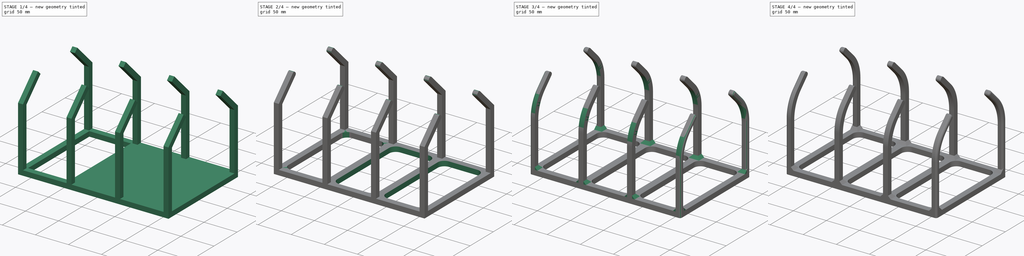
[diagram: build sequence overview — one tinted view per stage of 4, left to right]
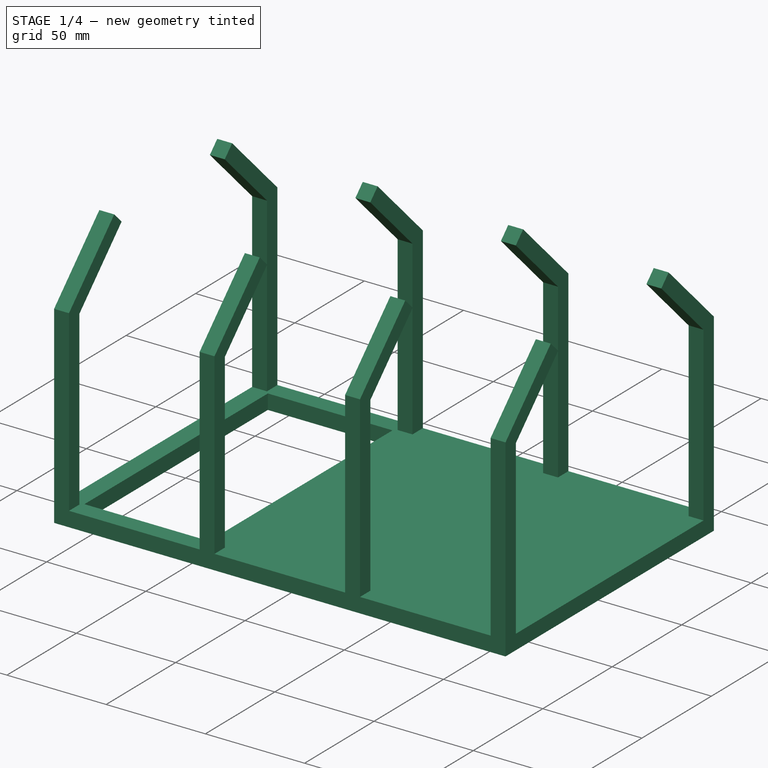
[diagram: stage 1 of 4 — iso view after this stage's code; geometry added in this stage tinted green]
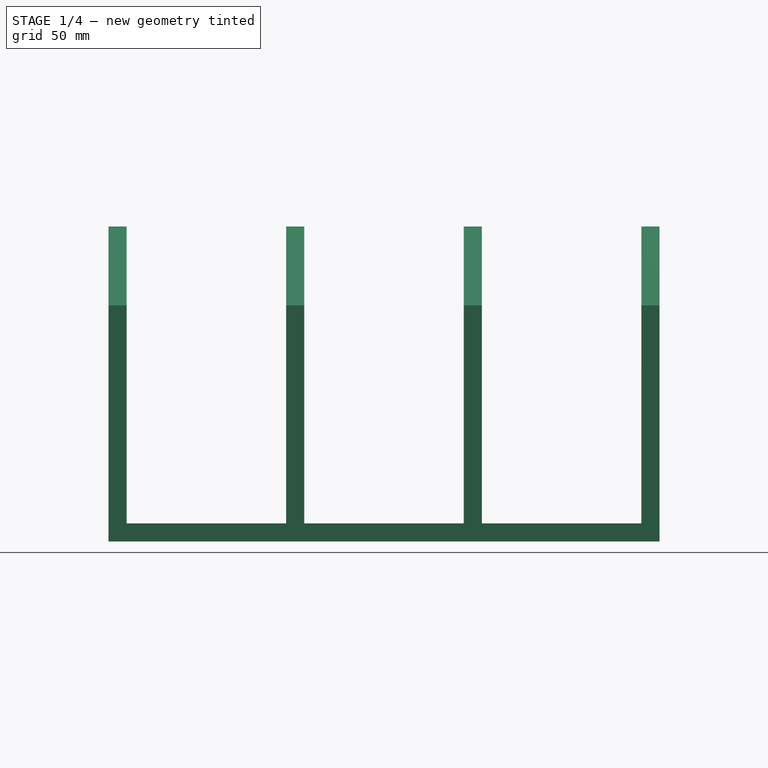
[diagram: stage 1 of 4 — front view after this stage's code; geometry added in this stage tinted green]
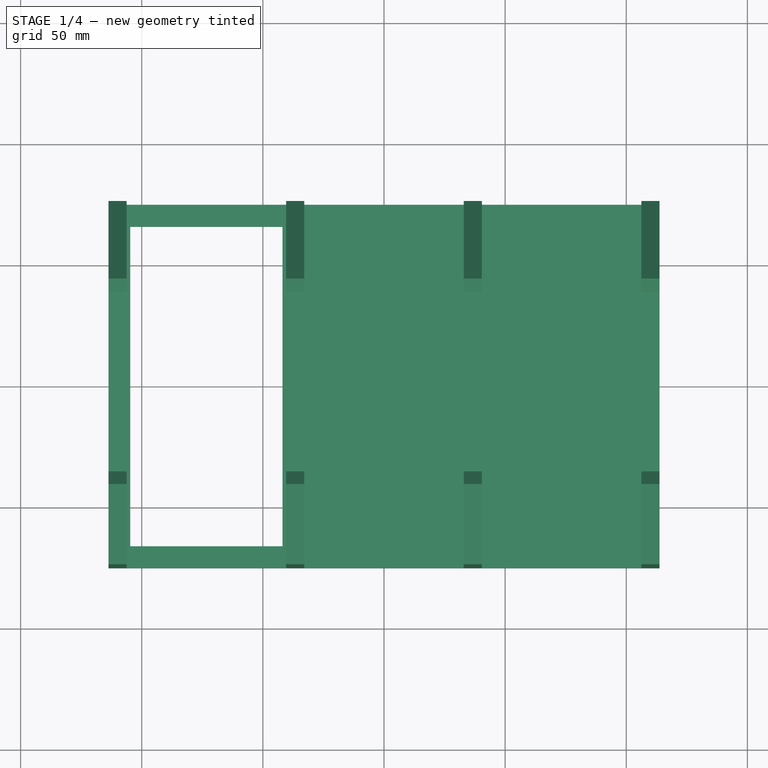
[diagram: stage 1 of 4 — top view after this stage's code; geometry added in this stage tinted green]
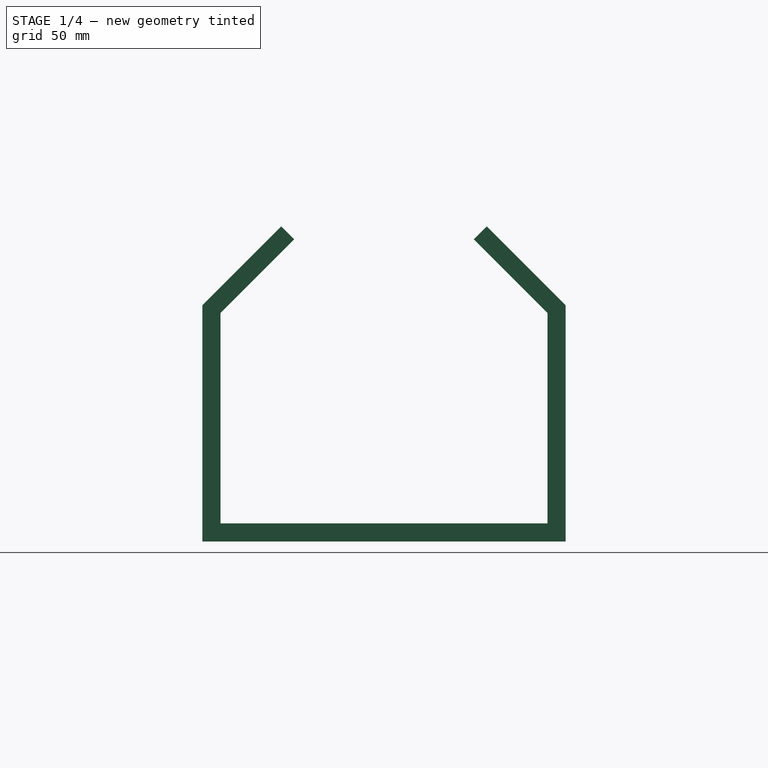
[diagram: stage 1 of 4 — right view after this stage's code; geometry added in this stage tinted green]
FCSTD DOCUMENT  (FreeCAD 0.19R21280 (Git))
Label: drying-rack
License: All rights reserved
LicenseURL: http://en.wikipedia.org/wiki/All_rights_reserved
objects: Sketcher::SketchObject×4, PartDesign::LinearPattern×4, PartDesign::Fillet×4, PartDesign::Pad×2, PartDesign::Pocket×2, PartDesign::Chamfer×1, PartDesign::Draft×1, PartDesign::Body×1
note: 29 computed .brp shape members not serialized (recipe doc carries the construction recipe); baked Part::Feature solids carry a one-line shape summary decoded from their .brp

FEATURE [Sketcher::SketchObject] Sketch
  MapMode = 5
  Support = -> [XY_Plane]
  sketch-geometry (4):
    g0: LineSegment StartX=-113.75 StartY=75 StartZ=0 EndX=113.75 EndY=75 EndZ=0
    g1: LineSegment StartX=113.75 StartY=75 StartZ=0 EndX=113.75 EndY=-75 EndZ=0
    g2: LineSegment StartX=113.75 StartY=-75 StartZ=0 EndX=-113.75 EndY=-75 EndZ=0
    g3: LineSegment StartX=-113.75 StartY=-75 StartZ=0 EndX=-113.75 EndY=75 EndZ=0
  constraints (10):
    c: Coincident(g0,g1)
    c: Coincident(g1,g2)
    c: Coincident(g2,g3)
    c: Coincident(g3,g0)
    c: Horizontal(g2)
    c: Vertical(g3)
    c: Symmetric(g0,g0,g-2)
    c: Symmetric(g0,g1,g-1)
    c: DistanceY(g3,g3) = 150
    c: DistanceX(g0,g0) = 227.5
FEATURE [PartDesign::Pad] Pad
  Length = 7.5
  Length2 = 100
  Profile = -> Sketch
  Type = 0
FEATURE [Sketcher::SketchObject] Sketch001
  ExternalGeometry = -> [Pad]
  MapMode = 5
  Placement = pos=(-113.75,0,0) rot=(0.57735,-0.57735,-0.57735;2.0944rad)
  Support = -> [Pad]
  sketch-geometry (18):
    g0: LineSegment StartX=-75 StartY=7.5 StartZ=0 EndX=-75 EndY=97.5 EndZ=0
    g1: LineSegment [constr] StartX=-75 StartY=97.5 StartZ=0 EndX=0 EndY=172.5 EndZ=0
    g2: LineSegment [constr] StartX=0 StartY=172.5 StartZ=0 EndX=75 EndY=97.5 EndZ=0
    g3: LineSegment StartX=75 StartY=97.5 StartZ=0 EndX=75 EndY=7.5 EndZ=0
    g4: LineSegment [constr] StartX=-67.5 StartY=94.3934 StartZ=0 EndX=0 EndY=161.893 EndZ=0
    g5: LineSegment StartX=-67.5 StartY=7.5 StartZ=0 EndX=-67.5 EndY=94.3934 EndZ=0
    g6: LineSegment [constr] StartX=0 StartY=161.893 StartZ=0 EndX=67.5 EndY=94.3934 EndZ=0
    g7: LineSegment StartX=67.5 StartY=94.3934 StartZ=0 EndX=67.5 EndY=7.5 EndZ=0
    g8: LineSegment StartX=67.5 StartY=7.5 StartZ=0 EndX=75 EndY=7.5 EndZ=0
    g9: LineSegment StartX=-75 StartY=7.5 StartZ=0 EndX=-67.5 EndY=7.5 EndZ=0
    g10: LineSegment [constr] StartX=0 StartY=161.893 StartZ=0 EndX=5.3033 EndY=167.197 EndZ=0
    g11: Circle [constr] CenterX=0 CenterY=172.5 CenterZ=0 NormalX=0 NormalY=0 NormalZ=1 AngleXU=0 Radius=60
    g12: LineSegment StartX=-37.1231 StartY=124.77 StartZ=0 EndX=-42.4264 EndY=130.074 EndZ=0
    g13: LineSegment StartX=-75 StartY=97.5 StartZ=0 EndX=-42.4264 EndY=130.074 EndZ=0
    g14: LineSegment StartX=-37.1231 StartY=124.77 StartZ=0 EndX=-67.5 EndY=94.3934 EndZ=0
    g15: LineSegment StartX=67.5 StartY=94.3934 StartZ=0 EndX=37.1231 EndY=124.77 EndZ=0
    g16: LineSegment StartX=37.1231 StartY=124.77 StartZ=0 EndX=42.4264 EndY=130.074 EndZ=0
    g17: LineSegment StartX=42.4264 StartY=130.074 StartZ=0 EndX=75 EndY=97.5 EndZ=0
  constraints (46):
    c: Coincident(g0,g-3)
    c: Vertical(g0)
    c: Coincident(g0,g1)
    c: PointOnObject(g1,g-2)
    c: Coincident(g1,g2)
    c: Coincident(g2,g3)
    c: Coincident(g3,g-3)
    c: Vertical(g3)
    c: Equal(g3,g0)
    c: DistanceY(g0,g1) = 165
    c: Vertical(g5)
    c: Coincident(g5,g4)
    c: Coincident(g4,g6)
    c: Coincident(g6,g7)
    c: Vertical(g7)
    c: Equal(g7,g5)
    c: Angle(g0,g1) = 2.35619
    c: PointOnObject(g4,g-2)
    c: Symmetric(g6,g4,g-2)
    c: Angle(g5,g4) = 2.35619
    c: PointOnObject(g5,g-3)
    c: Coincident(g8,g7)
    c: Coincident(g8,g3)
    c: Coincident(g9,g0)
    c: Coincident(g9,g5)
    c: Coincident(g10,g4)
    c: PointOnObject(g10,g2)
    c: Perpendicular(g6,g10)
    c: Distance(g10) = 7.5
    c: DistanceX(g8,g8) = 7.5
    c: Coincident(g11,g1)
    c: Diameter(g11) = 120
    c: PointOnObject(g12,g4)
    c: PointOnObject(g12,g1)
    c: Perpendicular(g1,g12)
    c: PointOnObject(g12,g11)
    c: Coincident(g13,g0)
    c: Coincident(g13,g12)
    c: Coincident(g14,g12)
    c: Coincident(g14,g5)
    c: Coincident(g15,g7)
    c: Coincident(g16,g15)
    c: Coincident(g17,g16)
    c: Coincident(g17,g3)
    c: Symmetric(g15,g12,g-2)
    c: Symmetric(g16,g12,g-2)
FEATURE [PartDesign::Pad] Pad001
  BaseFeature = -> Pad
  Length = 7.5
  Length2 = 100
  Profile = -> Sketch001
  Reversed = true
  Type = 0
FEATURE [PartDesign::LinearPattern] LinearPattern
  BaseFeature = -> Pad001
  Direction = -> X_Axis
  Length = 220
  Occurrences = 4
  Originals = -> [Pad001]
FEATURE [Sketcher::SketchObject] Sketch002
  ExternalGeometry = -> [LinearPattern]
  MapMode = 5
  Placement = pos=(0,0,7.5) rot=(0,0,1;0rad)
  Support = -> [LinearPattern]
  sketch-geometry (11):
    g0: LineSegment [constr] StartX=-40.4167 StartY=-67.5 StartZ=0 EndX=-106.25 EndY=-67.5 EndZ=0
    g1: LineSegment [constr] StartX=-106.25 StartY=-67.5 StartZ=0 EndX=-106.25 EndY=67.5 EndZ=0
    g2: LineSegment [constr] StartX=-106.25 StartY=67.5 StartZ=0 EndX=-40.4167 EndY=67.5 EndZ=0
    g3: LineSegment [constr] StartX=-40.4167 StartY=67.5 StartZ=0 EndX=-40.4167 EndY=-67.5 EndZ=0
    g4: LineSegment StartX=-104.75 StartY=66 StartZ=0 EndX=-41.9167 EndY=66 EndZ=0
    g5: LineSegment StartX=-41.9167 StartY=66 StartZ=0 EndX=-41.9167 EndY=-66 EndZ=0
    g6: LineSegment StartX=-41.9167 StartY=-66 StartZ=0 EndX=-104.75 EndY=-66 EndZ=0
    g7: LineSegment StartX=-104.75 StartY=-66 StartZ=0 EndX=-104.75 EndY=66 EndZ=0
    g8: LineSegment [constr] StartX=-104.75 StartY=66 StartZ=0 EndX=-106.25 EndY=66 EndZ=0
    g9: LineSegment [constr] StartX=-41.9167 StartY=66 StartZ=0 EndX=-40.4167 EndY=66 EndZ=0
    g10: LineSegment [constr] StartX=-41.9167 StartY=66 StartZ=0 EndX=-41.9167 EndY=67.5 EndZ=0
  constraints (30):
    c: Coincident(g0,g1)
    c: Coincident(g1,g2)
    c: Coincident(g2,g3)
    c: Coincident(g3,g0)
    c: Horizontal(g0)
    c: Horizontal(g2)
    c: Vertical(g1)
    c: Vertical(g3)
    c: Coincident(g0,g-4)
    c: Coincident(g1,g-3)
    c: Coincident(g4,g5)
    c: Coincident(g5,g6)
    c: Coincident(g6,g7)
    c: Coincident(g7,g4)
    c: Horizontal(g4)
    c: Horizontal(g6)
    c: Vertical(g7)
    c: Symmetric(g5,g4,g-1)
    c: Coincident(g8,g4)
    c: PointOnObject(g8,g1)
    c: Perpendicular(g1,g8)
    c: Coincident(g9,g4)
    c: PointOnObject(g9,g3)
    c: Perpendicular(g3,g9)
    c: Coincident(g10,g4)
    c: PointOnObject(g10,g2)
    c: Vertical(g10)
    c: Equal(g10,g9)
    c: Equal(g9,g8)
    c: DistanceX(g8,g8) = 1.5
FEATURE [PartDesign::Pocket] Pocket
  BaseFeature = -> LinearPattern
  Length = 5
  Length2 = 100
  Profile = -> Sketch002
  Type = 1
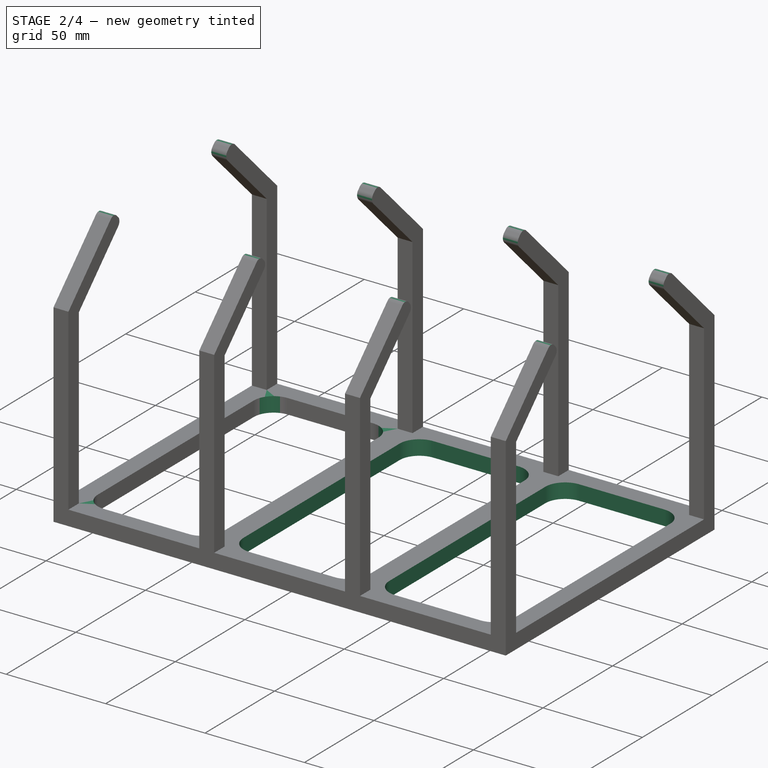
[diagram: stage 2 of 4 — iso view after this stage's code; geometry added in this stage tinted green]
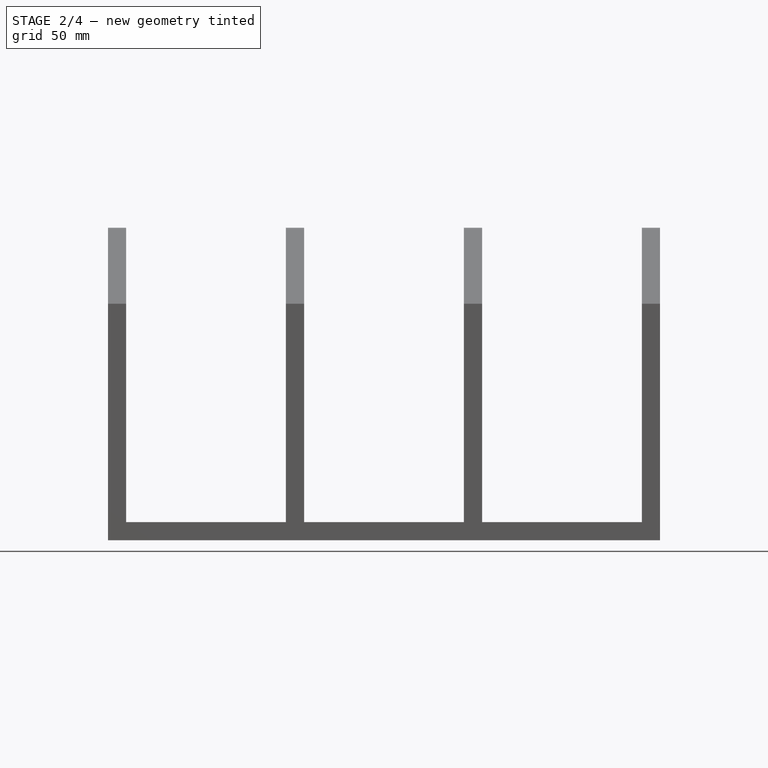
[diagram: stage 2 of 4 — front view after this stage's code; geometry added in this stage tinted green]
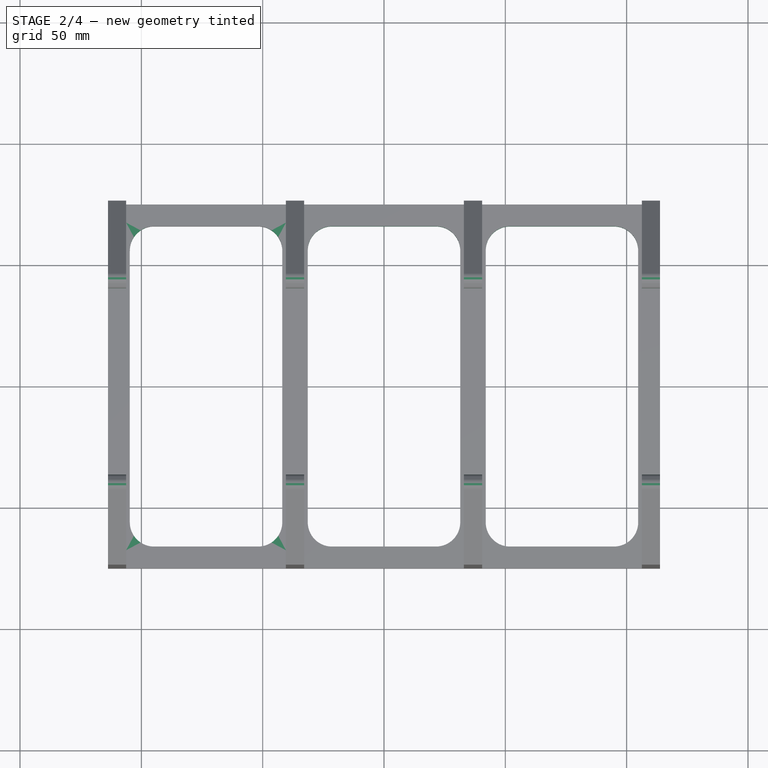
[diagram: stage 2 of 4 — top view after this stage's code; geometry added in this stage tinted green]
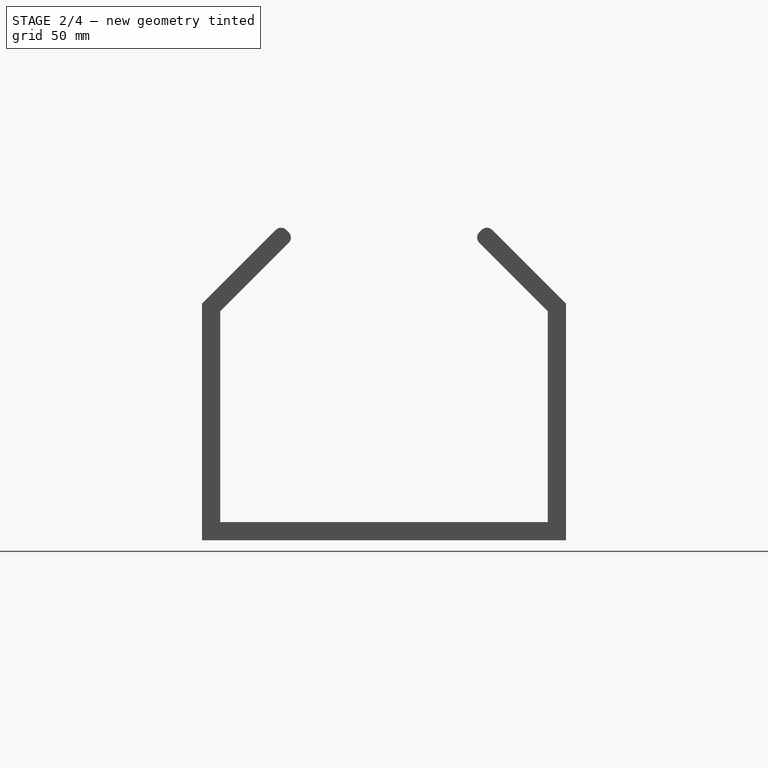
[diagram: stage 2 of 4 — right view after this stage's code; geometry added in this stage tinted green]
FEATURE [PartDesign::LinearPattern] LinearPattern001
  BaseFeature = -> Pocket
  Direction = -> Sketch002 [H_Axis]
  Length = 146.667
  Occurrences = 3
  Originals = -> [Pocket]
FEATURE [PartDesign::Fillet] Fillet002
  Base = -> LinearPattern001 [Edge114,Edge110,Edge106,Edge112,Edge108,Edge104,Edge103,Edge107,Edge111,Edge105,Edge109,Edge113]
  BaseFeature = -> LinearPattern001
  Radius = 10
  SupportTransform = true
FEATURE [PartDesign::Fillet] Fillet
  Base = -> Fillet002 [Edge223,Edge217,Edge218,Edge229,Edge219,Edge230,Edge220,Edge224,Edge221,Edge222,Edge231,Edge228,Edge232,Edge227,Edge225,Edge226]
  BaseFeature = -> Fillet002
  Radius = 3
  SupportTransform = true
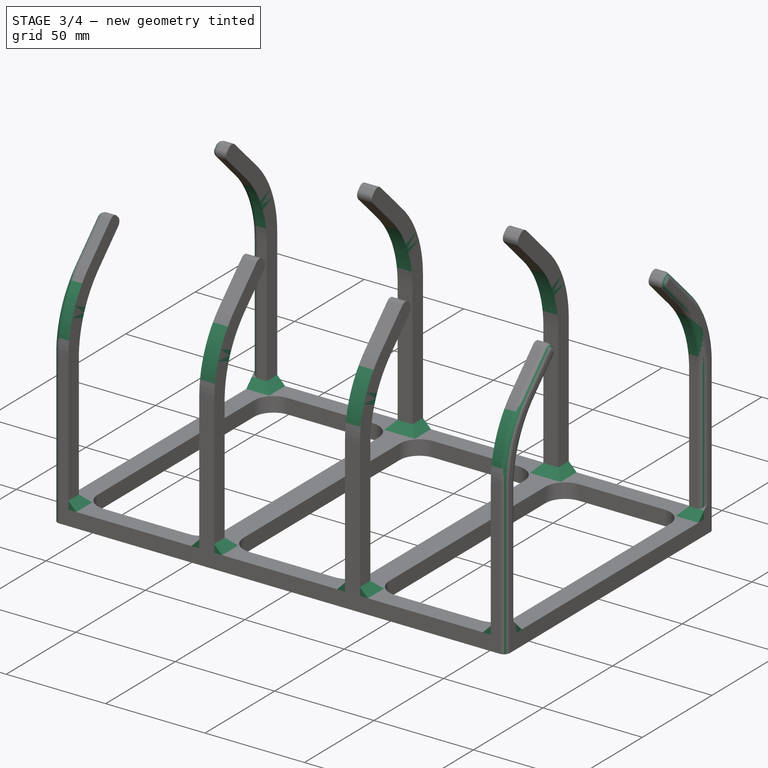
[diagram: stage 3 of 4 — iso view after this stage's code; geometry added in this stage tinted green]
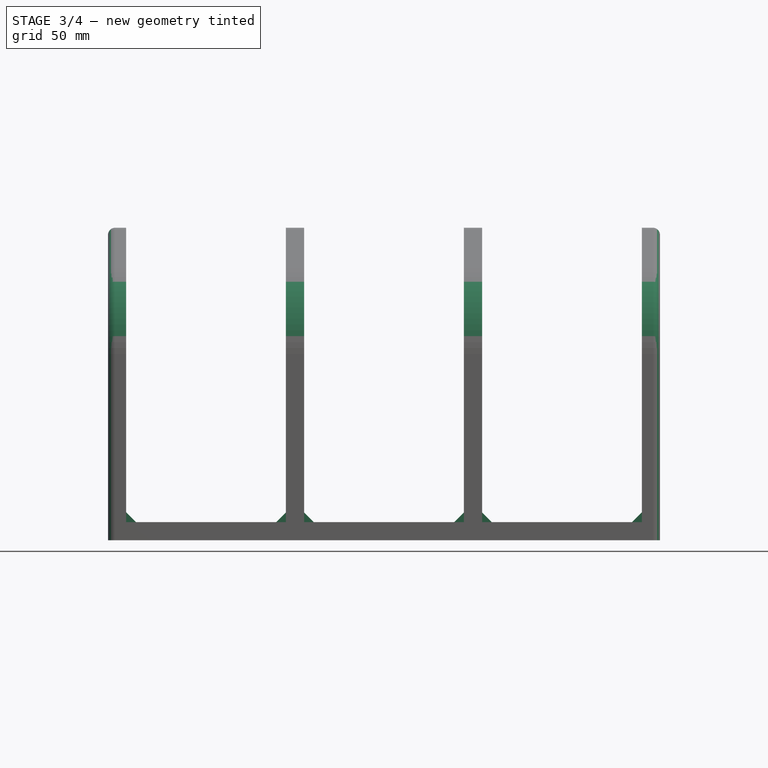
[diagram: stage 3 of 4 — front view after this stage's code; geometry added in this stage tinted green]
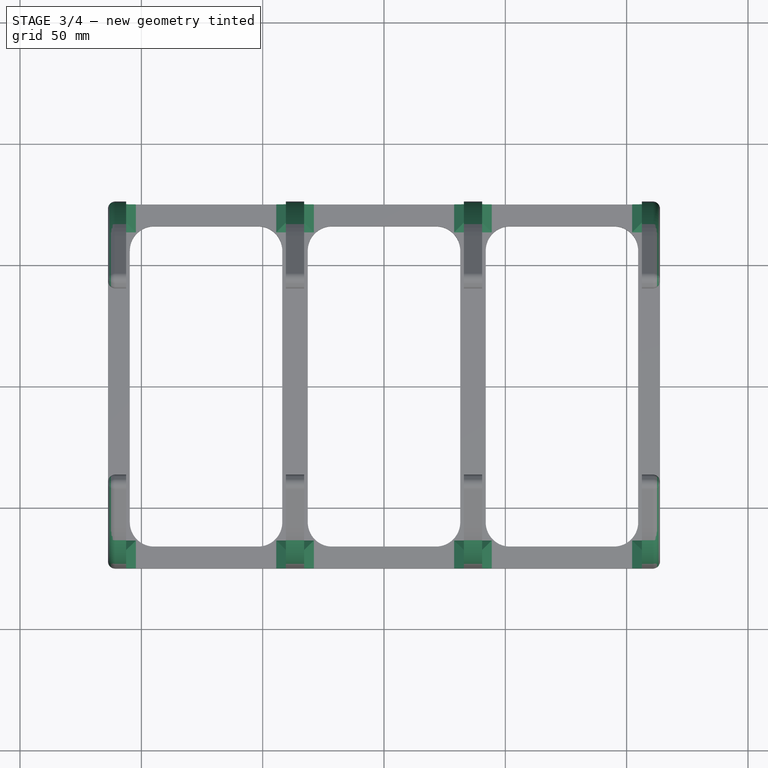
[diagram: stage 3 of 4 — top view after this stage's code; geometry added in this stage tinted green]
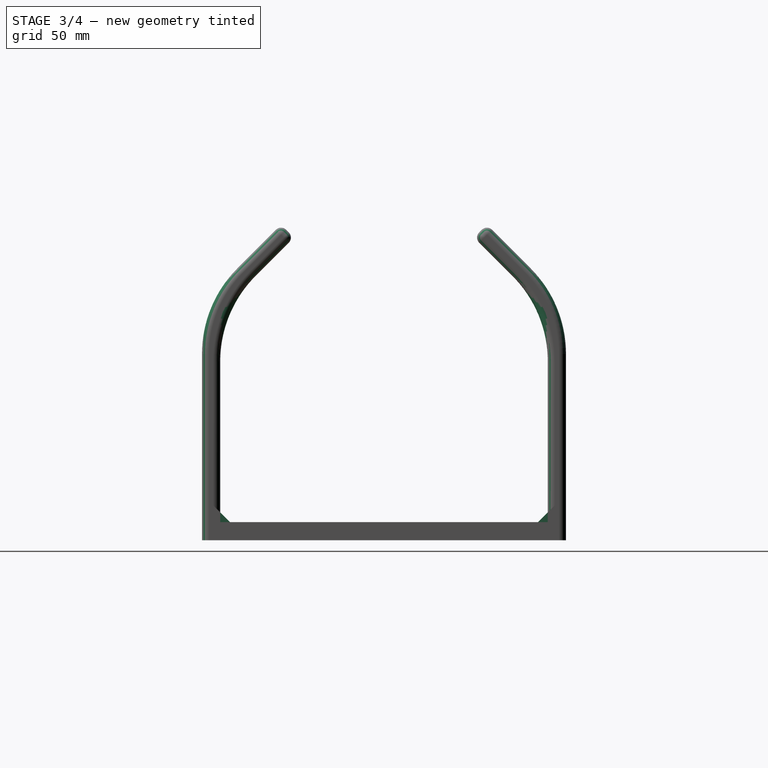
[diagram: stage 3 of 4 — right view after this stage's code; geometry added in this stage tinted green]
FEATURE [PartDesign::Fillet] Fillet003
  Base = -> Fillet [Edge241,Edge240,Edge239,Edge238,Edge209,Edge199,Edge169,Edge10,Edge137,Edge145,Edge167,Edge197,Edge25,Edge237,Edge236,Edge234]
  BaseFeature = -> Fillet
  Radius = 50
  SupportTransform = true
FEATURE [PartDesign::Chamfer] Chamfer
  Angle = 45
  Base = -> Fillet003 [Edge65,Edge63,Edge61,Edge66,Edge68,Edge53,Edge55,Edge57,Edge18,Edge35,Edge46,Edge44,Edge48,Edge49,Edge47,Edge52,Edge54,Edge56,Edge62,Edge60]
  BaseFeature = -> Fillet003
  ChamferType = 0
  FlipDirection = false
  Size = 4
  Size2 = 1
  SupportTransform = true
FEATURE [PartDesign::Fillet] Fillet004
  Base = -> Chamfer [Edge24,Edge23,Edge107,Edge119]
  BaseFeature = -> Chamfer
  Radius = 3
  SupportTransform = true
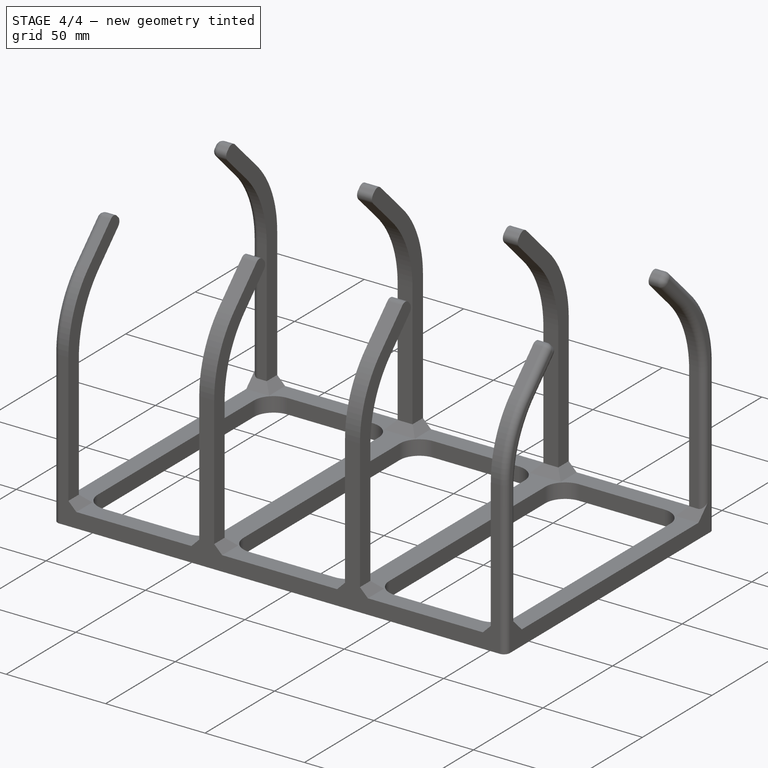
[diagram: stage 4 of 4 — iso view after this stage's code; geometry added in this stage tinted green]
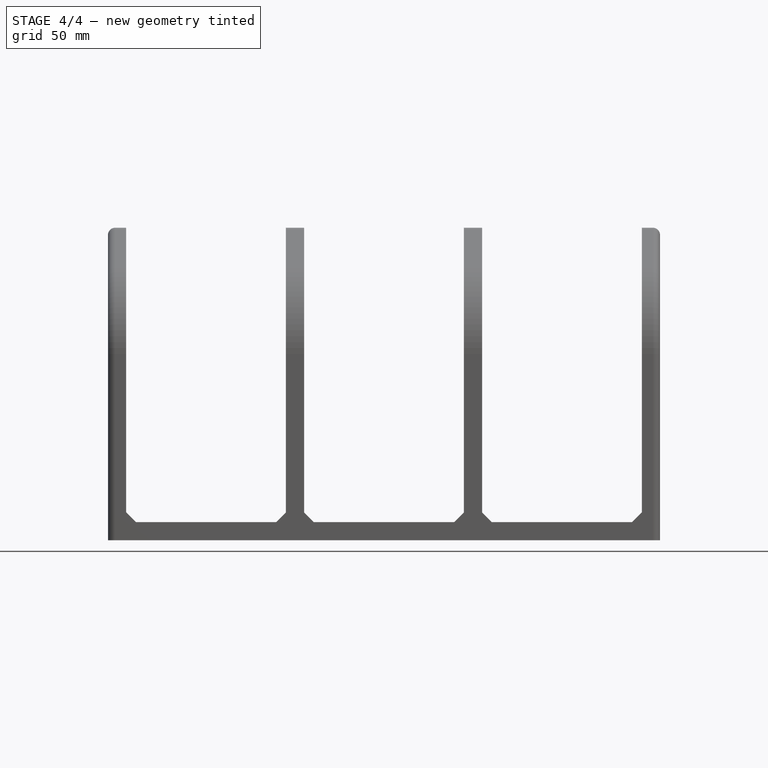
[diagram: stage 4 of 4 — front view after this stage's code; geometry added in this stage tinted green]
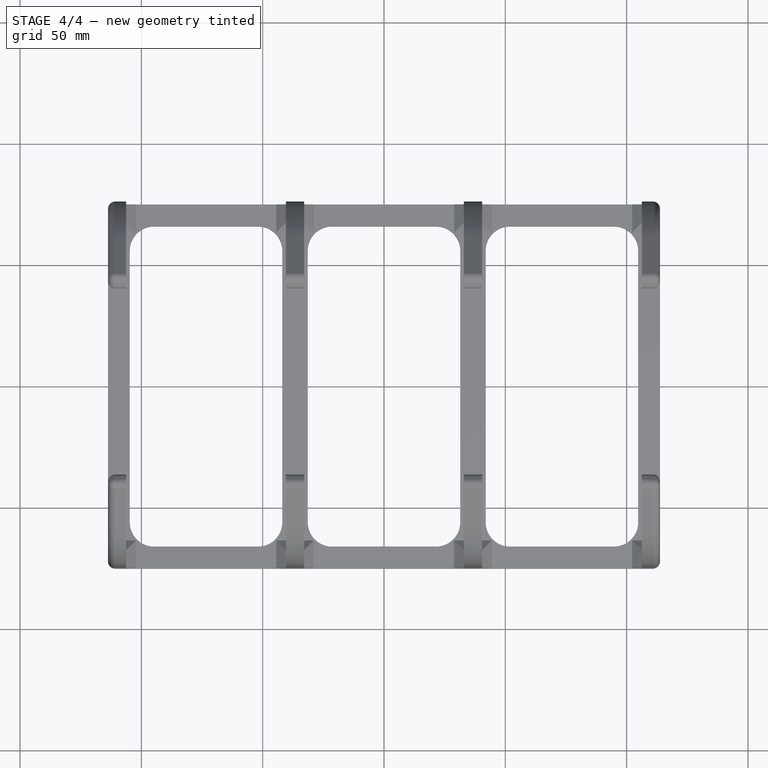
[diagram: stage 4 of 4 — top view after this stage's code; geometry added in this stage tinted green]
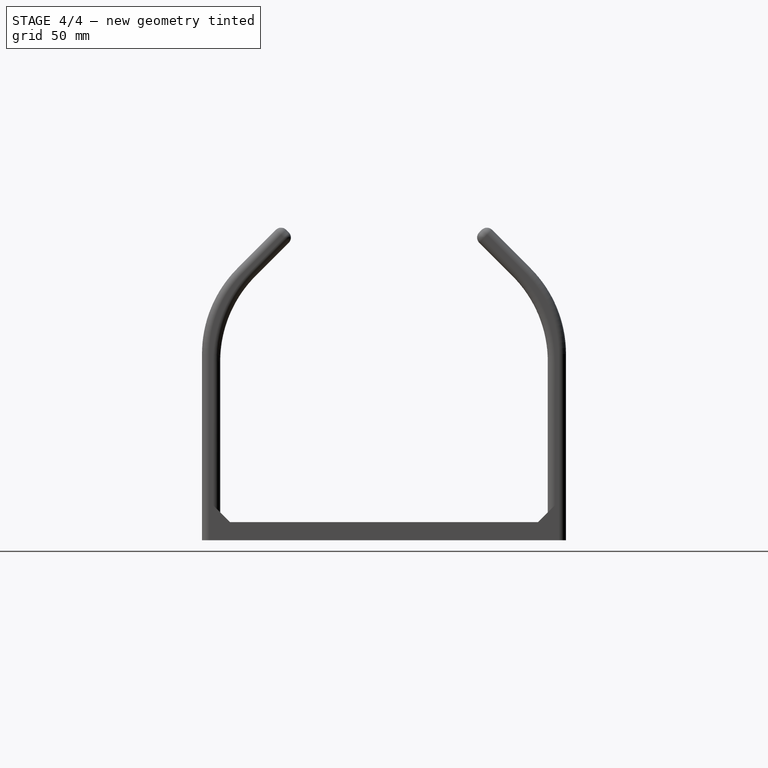
[diagram: stage 4 of 4 — right view after this stage's code; geometry added in this stage tinted green]
FEATURE [Sketcher::SketchObject] Sketch003
  ExternalGeometry = -> [Fillet004]
  MapMode = 5
  Placement = pos=(0,0,0) rot=(1,0,0;3.14159rad)
  Support = -> [Fillet004]
  sketch-geometry (4):
    g0: LineSegment [constr] StartX=-32.9167 StartY=-71.25 StartZ=0 EndX=-36.6667 EndY=-71.25 EndZ=0
    g1: LineSegment [constr] StartX=-36.6667 StartY=-71.25 StartZ=0 EndX=-36.6667 EndY=-75 EndZ=0
    g2: Circle CenterX=-36.6667 CenterY=-71.25 CenterZ=0 NormalX=0 NormalY=0 NormalZ=1 AngleXU=0 Radius=1.4
    g3: Circle CenterX=-36.6667 CenterY=71.25 CenterZ=0 NormalX=0 NormalY=0 NormalZ=1 AngleXU=0 Radius=1.4
  constraints (9):
    c: Coincident(g1,g0)
    c: PointOnObject(g1,g-3)
    c: PointOnObject(g0,g-4)
    c: Symmetric(g-4,g-4,g0)
    c: Symmetric(g-3,g-4,g1)
    c: Coincident(g2,g0)
    c: Diameter(g2) = 2.8
    c: Symmetric(g2,g3,g-1)
    c: Equal(g3,g2)
FEATURE [PartDesign::Pocket] Pocket001
  BaseFeature = -> Fillet004
  Length = 10
  Length2 = 100
  Profile = -> Sketch003
  Type = 0
FEATURE [PartDesign::LinearPattern] LinearPattern002
  BaseFeature = -> Pocket001
  Direction = -> Sketch003 [H_Axis]
  Length = 146.667
  Occurrences = 3
  Originals = -> [Pocket001]
FEATURE [PartDesign::LinearPattern] LinearPattern003
  BaseFeature = -> LinearPattern002
  Direction = -> Sketch003 [H_Axis]
  Length = 73.3333
  Occurrences = 2
  Originals = -> [Pocket001]
  Reversed = true
FEATURE [PartDesign::Draft] Draft
  Angle = 5
  Base = -> LinearPattern003 [Face32,Face33,Face34,Face62,Face61,Face52,Face51,Face31]
  BaseFeature = -> LinearPattern003
  NeutralPlane = -> LinearPattern003 [Face13]
  PullDirection = -> LinearPattern003 [Edge201]
  SupportTransform = true
FEATURE [PartDesign::Body] Body
  Group = -> [Sketch,Pad,Sketch001,Pad001,LinearPattern,Sketch002,Pocket,LinearPattern001,Fillet002,Fillet,Fillet003,Chamfer,Fillet004,Sketch003,Pocket001,LinearPattern002,LinearPattern003,Draft]
  Origin = -> Origin
  Tip = -> Draft
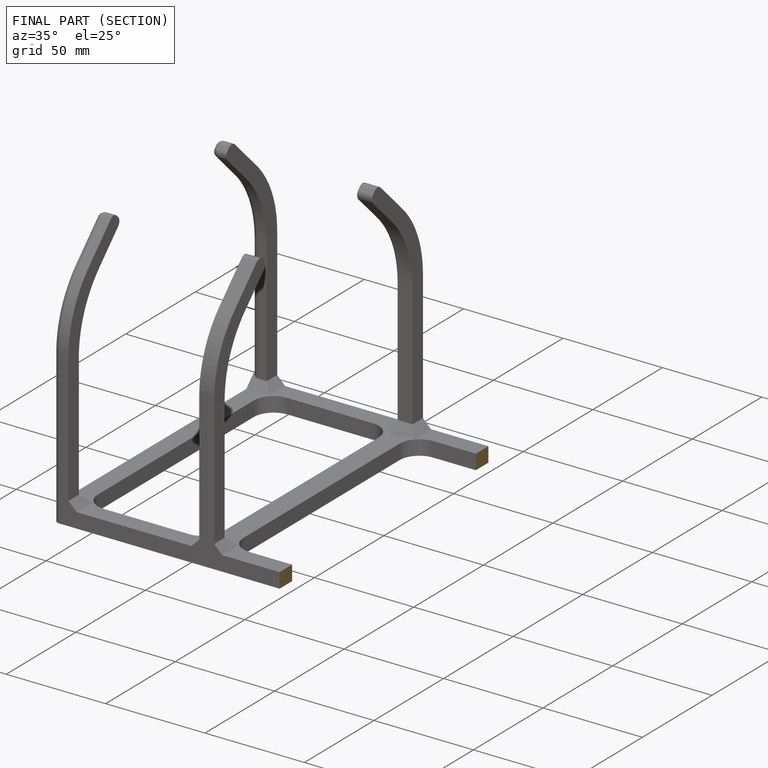
[diagram: finished part — half-section view (interior)]
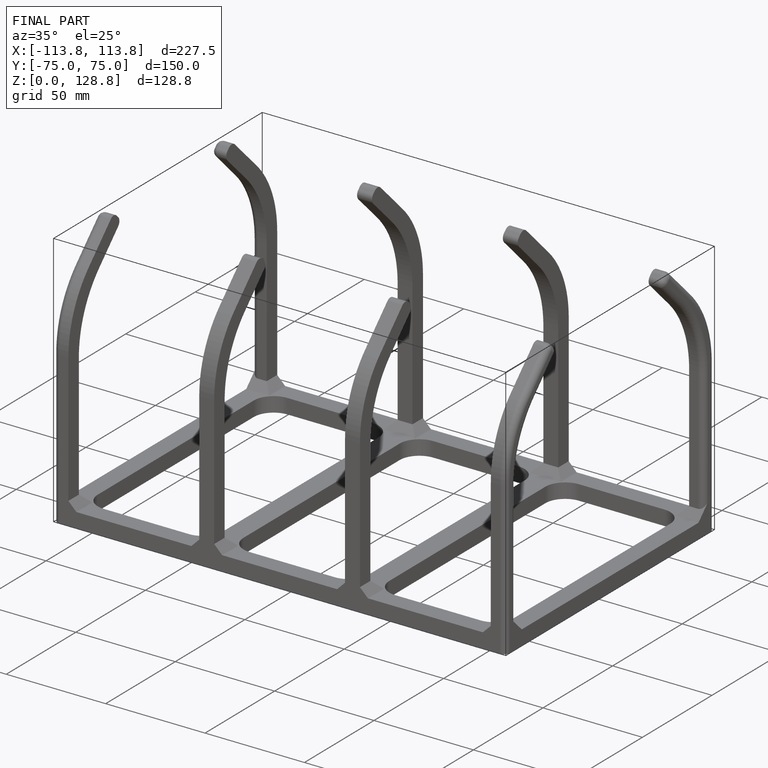
[diagram: finished part — iso view with bounding-box wireframe]
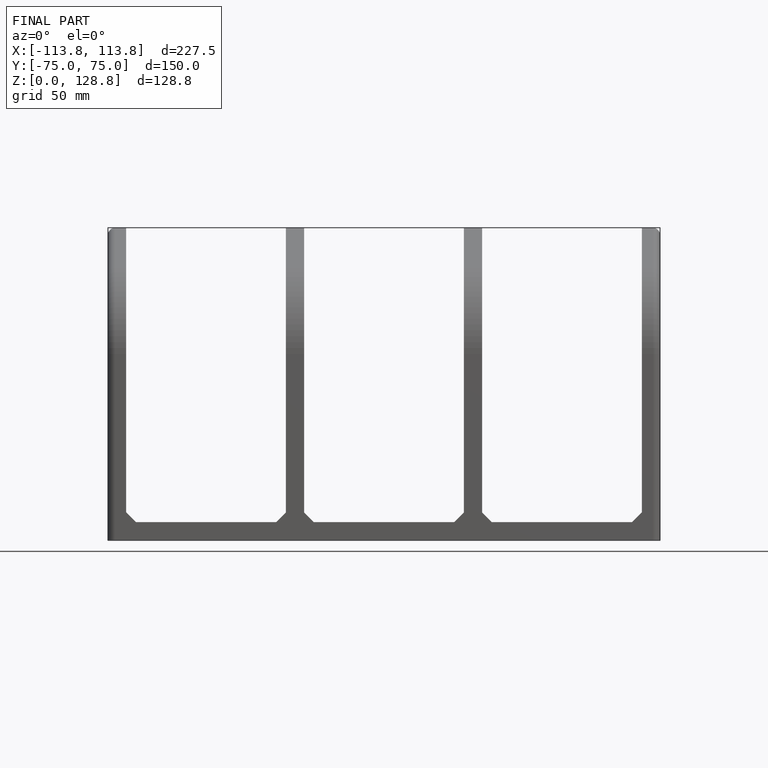
[diagram: finished part — front view with bounding-box wireframe]
